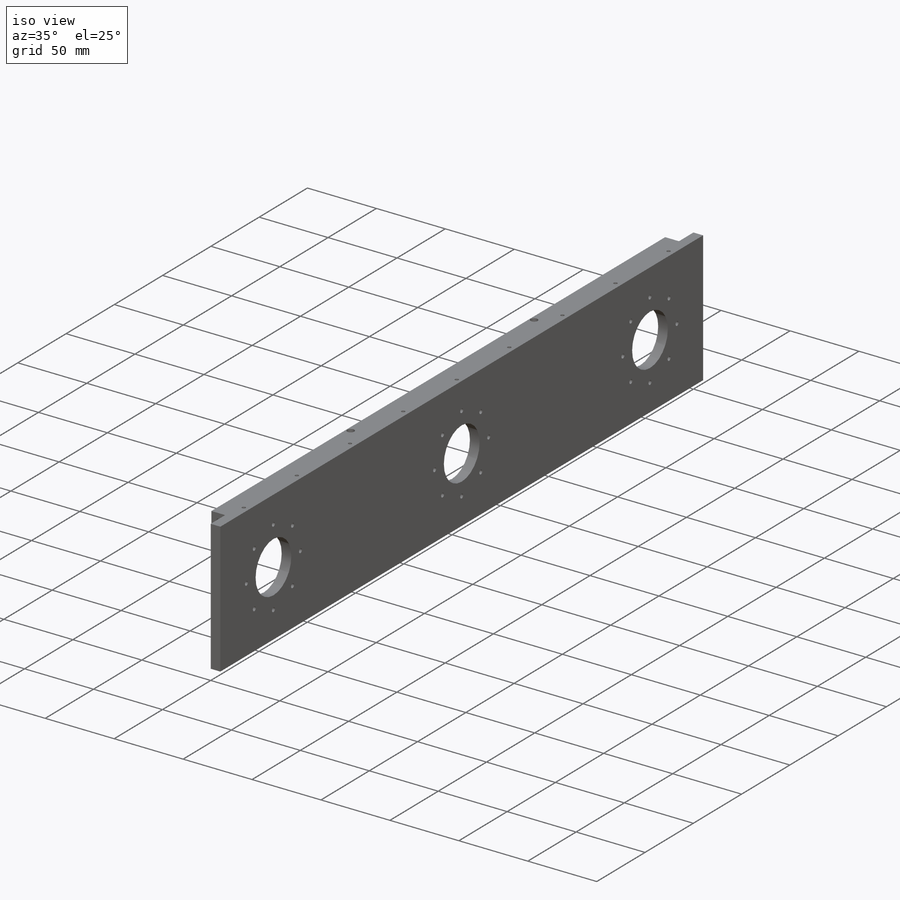
[diagram: iso view]
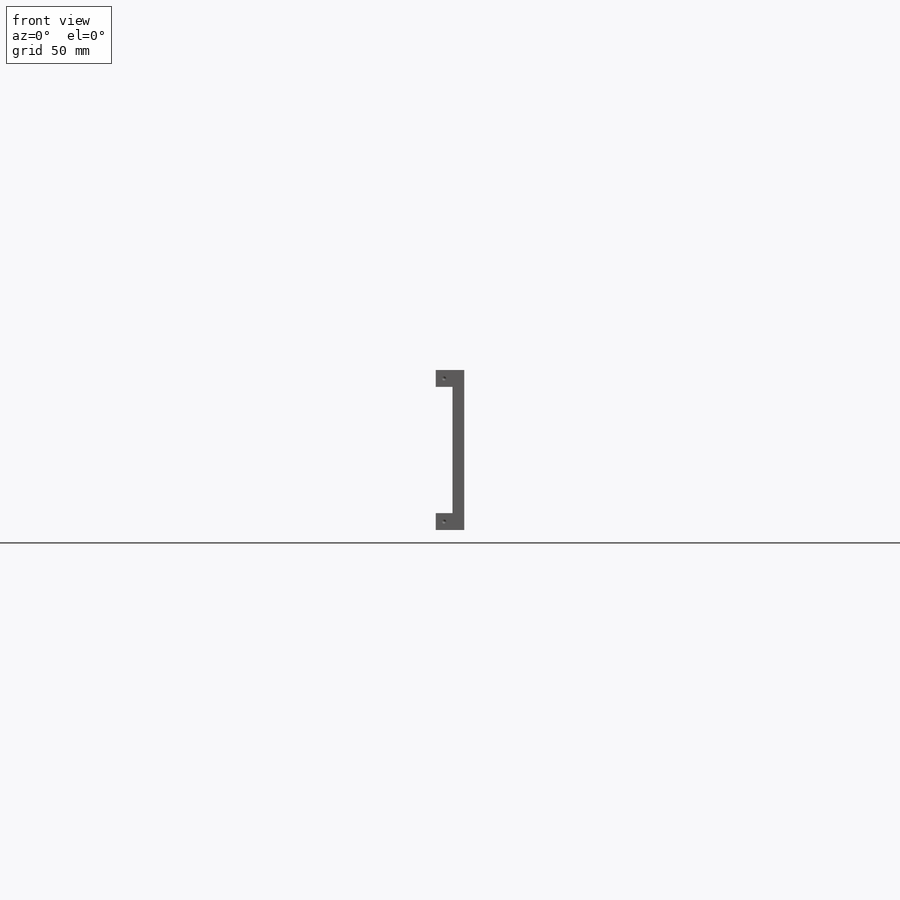
[diagram: front view]
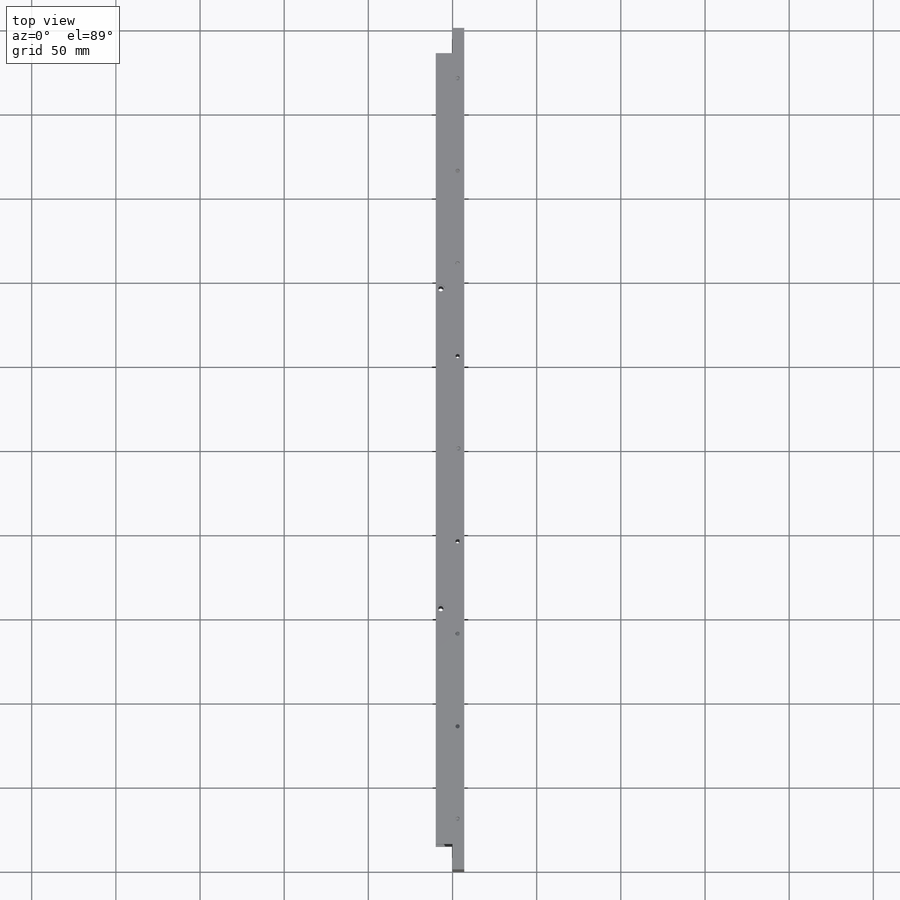
[diagram: top view]
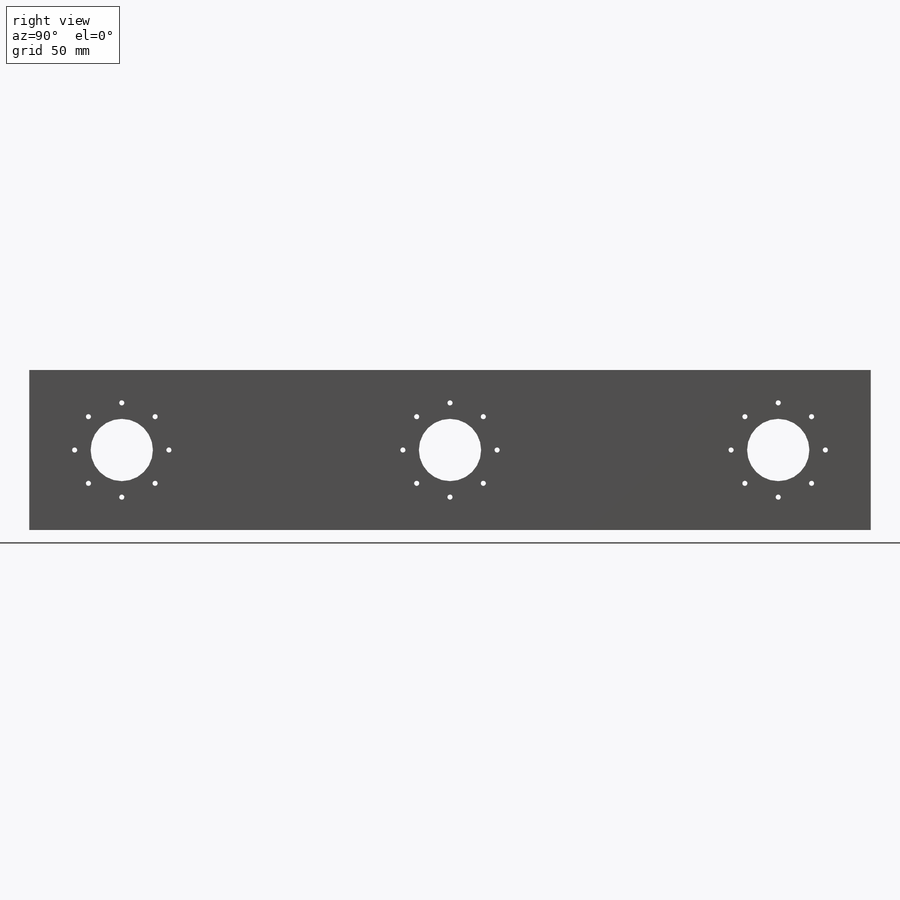
[diagram: right view]
SOLIDWORKS PART (.sldprt)
format: sldprt  version: not decoded by parser v0  size: 812,032 bytes
history: native  units: mm
features: sketch x22, mirror x10, cut_extrude x6, thread x6, hole x5, extrude x2, pattern_circular x2, material x1, plane x1 (+12 scaffold rows collapsed)
feature tree (67):
  scaffold x12  (default folders/planes/origin — collapsed)
  material  "2014 Alloy"
  sketch  "Sketch1"  dims[c1.D1=~31.840733mm c1.D2=~77.170276mm c2.D1=500.0mm c2.D2=95.0mm]
  extrude  "Boss-Extrude1"  Depth=7mm
  sketch  "Sketch2"  dims[c1.D2=37.0mm c1.D1=195.0mm c2.D2=~66.511158mm]
  cut_extrude  "Cut-Extrude1"  [1 undecoded]
  hole  "Ø3.0mm Dowel Hole1"  Diameter=3mm Depth=15mm
  sketch  "Sketch4"  dims[D1=28.0mm D2=0.0mm]
  sketch  "Sketch3"  dims[hole-wizard template sketch: 50 standard entries collapsed; hole parameters above]
  pattern_circular  "CirPattern1"  Count=8 Angle=360deg
  sketch  "Sketch5"  dims[c1.D1=~43.424998mm c1.D3=48.0mm c2.D1=0.75mm c2.D2=0.75mm]
  sketch  "Sketch6"  dims[D1=~9.996997mm]
  sketch  "Sketch7"  dims[D1=~0.915261mm]
  plane  "Plane1"
  mirror  "Mirror1"
  sketch  "Sketch9"  dims[D1=37.0mm]
  cut_extrude  "Cut-Extrude3"  [1 undecoded]
  hole  "Ø3.0mm Dowel Hole2"  Diameter=3mm Depth=15mm
  sketch  "Sketch11"  dims[D1=28.0mm]
  sketch  "Sketch10"  dims[hole-wizard template sketch: 50 standard entries collapsed; hole parameters above]
  pattern_circular  "CirPattern2"  Count=8 Angle=360deg
  sketch  "Sketch12"  dims[D1=48.0mm D2=0.75mm D3=0.75mm]
  sketch  "Sketch17"  dims[D1=10.0mm D2=10.0mm D3=10.0mm]
  extrude  "Boss-Extrude2"  Depth=500mm
  sketch  "Sketch18"  dims[D1=7.0mm D2=15.0mm]
  cut_extrude  "Cut-Extrude5"  Depth=500mm
  mirror  "Mirror2"
  hole  "M3 Tapped Hole2"  Diameter=2.5mm Depth=15mm
  sketch  "Sketch21"  dims[D1=55.0mm D2=55.0mm D3=55.0mm D4=55.0mm D5=4.0mm]
  sketch  "Sketch20"  dims[hole-wizard template sketch: 50 standard entries collapsed; hole parameters above]
  thread  "Hole Thread4"  Diameter=12mm  [1 undecoded]
  thread  "Hole Thread5"  Diameter=12mm  [1 undecoded]
  thread  "Hole Thread6"  Diameter=12mm  [1 undecoded]
  thread  "Hole Thread7"  Diameter=12mm  [1 undecoded]
  thread  "Hole Thread8"  Diameter=12mm  [1 undecoded]
  mirror  "Mirror3"
  hole  "CBORE for M1.6 Hex Head Cap Screw1"  Diameter=3mm Depth=15mm
  sketch  "Sketch23"  dims[D1=3.0mm D2=140.0mm]
  sketch  "Sketch24"  dims[hole-wizard template sketch: 28 standard entries collapsed; hole parameters kept: c8.Hole Dia.=3.0mm c8.Hole Depth=15.0mm c8.C'Bore Dia.=5.0mm c8.C'Bore Depth=5.0mm c8.D5=~14.816244mm c8.Drill Angle=118.0deg]
  mirror  "Mirror4"
  mirror  "Mirror5"
  sketch  "Sketch25"  dims[c1.D1=5.0mm c1.D8=70.0mm c1.D6=70.0mm c1.D7=70.0mm c2.D6=35.0mm c2.D7=35.0mm c2.D8=5.0mm c2.D9=70.0mm c2.D10=35.0mm c2.D12=5.0mm c2.D1=40.0mm c2.D2=40.0mm c2.D3=20.0mm c2.D4=20.0mm c2.D5=~127.475488mm c3.D7=~114.629638mm c3.D6=~2.82313mm c3.D5=~49.457587mm c3.D2=15.0mm c3.D3=15.0mm c3.D4=10.0mm c4.D5=35.0mm c4.D6=35.0mm c4.D7=~76.368093mm c4.D8=~14.494813mm c4.D1=15.0mm c5.D6=~14.47935mm c5.D3=15.0mm c5.D5=15.0mm c5.D8=~0.537726mm c5.D9=5.0mm c5.D11=15.0mm c6.D5=5.0mm c6.D6=5.0mm]
  cut_extrude  "Cut-Extrude7"  Depth=6mm
  mirror  "Mirror6"
  sketch  "Sketch26"  dims[c1.D1=8.0mm c1.D3=8.0mm c2.D1=~1.894404mm c2.D2=15.0mm c2.D3=10.0mm c3.D3=115.0mm c3.D4=3.0mm c4.D4=~0.926955mm c4.D3=15.0mm]
  cut_extrude  "Cut-Extrude8"  Depth=10mm
  mirror  "Mirror7"
  sketch  "Sketch27"  dims[c1.D1=8.0mm c1.D2=8.0mm c1.D3=8.0mm c2.D2=8.0mm c2.D1=~121.011043mm c3.D2=20.0mm c3.D3=20.0mm c4.D2=15.0mm c4.D3=15.0mm]
  cut_extrude  "Cut-Extrude9"  Depth=10mm
  mirror  "Mirror8"
  hole  "M3 Tapped Hole3"  Diameter=2.5mm Depth=7.5mm
  sketch  "Sketch33"  dims[D1=5.0mm D2=5.0mm]
  sketch  "Sketch32"  dims[hole-wizard template sketch: 50 standard entries collapsed; hole parameters above]
  thread  "Hole Thread9"  Diameter=6mm  [1 undecoded]
  mirror  "Mirror9"
  mirror  "Mirror10"
decode coverage: 41 of 53 modeling features carry decoded parameters
note: ~ marks probable driven/reference dimensions
note: 8 parameter values undecoded
summary: Diameter pulled from absorbed wizard sketch
note: suppression state not decoded; provenance and decode notes live in map.json
